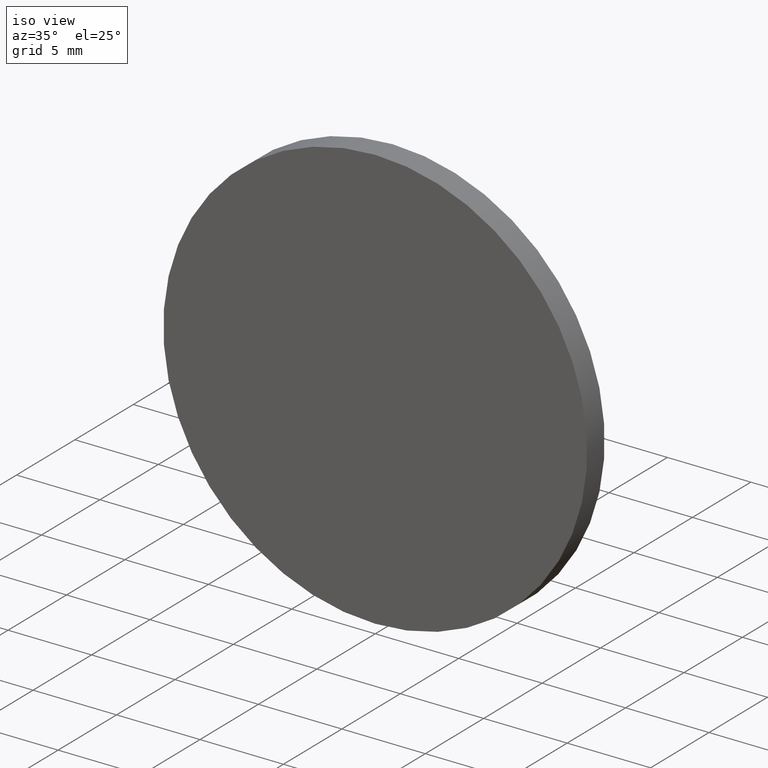
[diagram: clean part render]
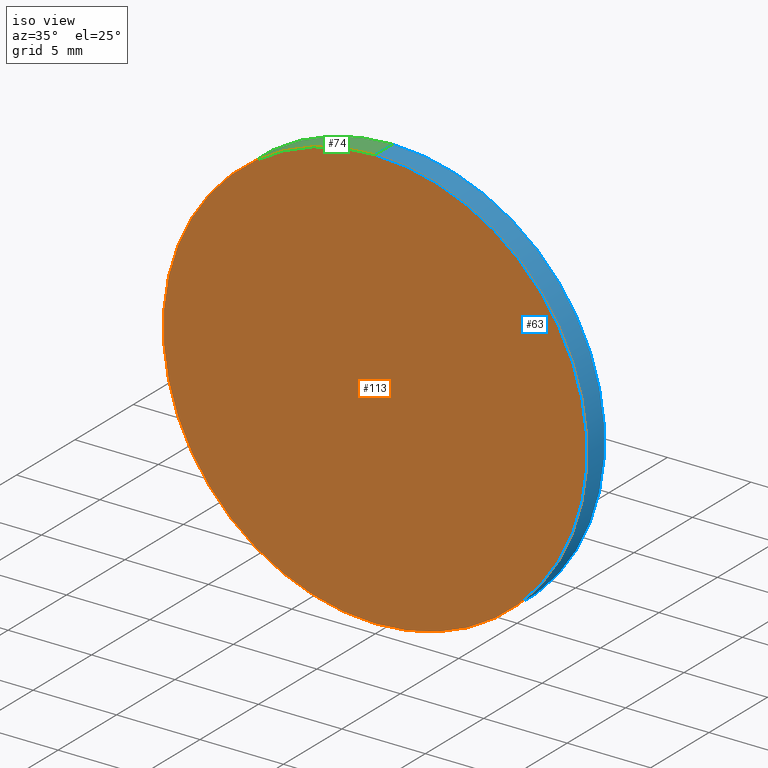
[diagram: same view with three faces highlighted in distinct colors, each labeled with its STEP entity id]
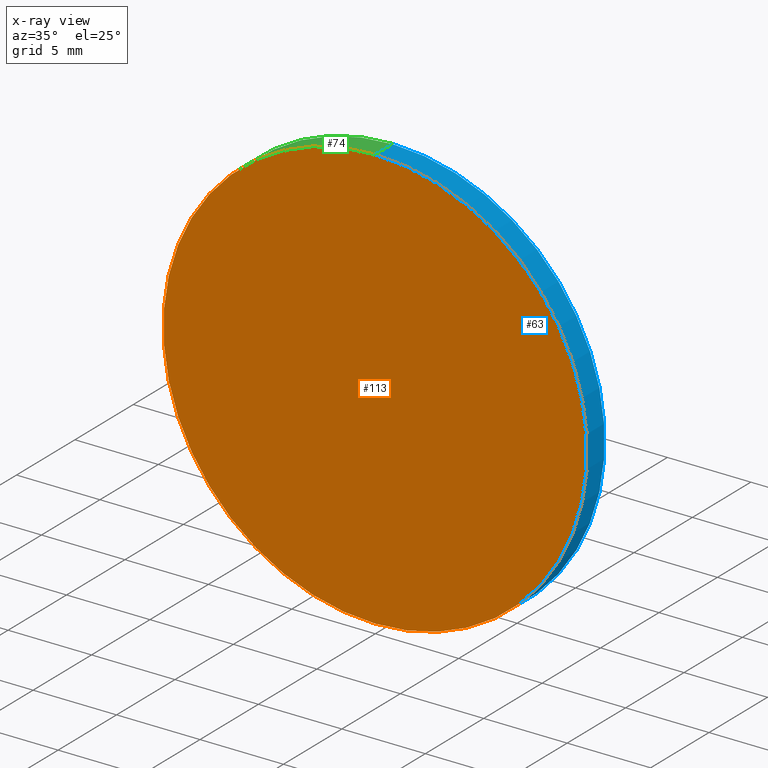
[diagram: x-ray of the same camera — body ghosted, the three highlighted faces saturated]
A machine part, iso view with three faces highlighted in distinct colors.
The next image is the same camera in x-ray (body ghosted, the three faces saturated) — at least one of them is partly hidden behind the body in this view.
Their STEP definitions:

[orange] entity #113 — the highlighted planar face has unit normal (0, 1, 0).
#5 = AXIS2_PLACEMENT_3D ( 'NONE', #87, #127, #116 ) ;
#13 = CARTESIAN_POINT ( 'NONE',  ( 0.0000000000000000000, 0.0000000000000000000, 0.0000000000000000000 ) ) ;
#16 = CIRCLE ( 'NONE', #5, 12.69999999999999900 ) ;
#26 = VERTEX_POINT ( 'NONE', #122 ) ;
#27 = AXIS2_PLACEMENT_3D ( 'NONE', #96, #32, #106 ) ;
#29 = AXIS2_PLACEMENT_3D ( 'NONE', #13, #120, #129 ) ;
#32 = DIRECTION ( 'NONE',  ( 0.0000000000000000000, 1.000000000000000000, 0.0000000000000000000 ) ) ;
#41 = PLANE ( 'NONE',  #29 ) ;
#42 = CIRCLE ( 'NONE', #27, 12.69999999999999900 ) ;
#68 = ORIENTED_EDGE ( 'NONE', *, *, #89, .F. ) ;
#87 = CARTESIAN_POINT ( 'NONE',  ( 0.0000000000000000000, 0.0000000000000000000, 0.0000000000000000000 ) ) ;
#89 = EDGE_CURVE ( 'NONE', #139, #26, #42, .T. ) ;
#95 = EDGE_CURVE ( 'NONE', #26, #139, #16, .T. ) ;
#96 = CARTESIAN_POINT ( 'NONE',  ( 0.0000000000000000000, 0.0000000000000000000, 0.0000000000000000000 ) ) ;
#106 = DIRECTION ( 'NONE',  ( 0.0000000000000000000, 0.0000000000000000000, 1.000000000000000000 ) ) ;
#107 = CARTESIAN_POINT ( 'NONE',  ( 1.555301434917138400E-015, 0.0000000000000000000, 12.69999999999999900 ) ) ;
#113 = ADVANCED_FACE ( 'NONE', ( #126 ), #41, .F. ) ;
#116 = DIRECTION ( 'NONE',  ( 0.0000000000000000000, 0.0000000000000000000, 1.000000000000000000 ) ) ;
#120 = DIRECTION ( 'NONE',  ( 0.0000000000000000000, 1.000000000000000000, 0.0000000000000000000 ) ) ;
#122 = CARTESIAN_POINT ( 'NONE',  ( 0.0000000000000000000, 0.0000000000000000000, -12.69999999999999900 ) ) ;
#124 = EDGE_LOOP ( 'NONE', ( #135, #68 ) ) ;
#126 = FACE_OUTER_BOUND ( 'NONE', #124, .T. ) ;
#127 = DIRECTION ( 'NONE',  ( 0.0000000000000000000, 1.000000000000000000, 0.0000000000000000000 ) ) ;
#129 = DIRECTION ( 'NONE',  ( 0.0000000000000000000, -0.0000000000000000000, 1.000000000000000000 ) ) ;
#135 = ORIENTED_EDGE ( 'NONE', *, *, #95, .F. ) ;
#139 = VERTEX_POINT ( 'NONE', #107 ) ;

[blue] entity #63 — the highlighted cylindrical surface (partial cylindrical patch) has radius 12.7 mm, axis along (-0, -1, -0).
#1 = EDGE_CURVE ( 'NONE', #137, #12, #3, .T. ) ;
#3 = CIRCLE ( 'NONE', #115, 12.69999999999999900 ) ;
#6 = VECTOR ( 'NONE', #43, 1000.000000000000000 ) ;
#9 = ORIENTED_EDGE ( 'NONE', *, *, #89, .T. ) ;
#10 = CARTESIAN_POINT ( 'NONE',  ( 0.0000000000000000000, 1.500000000000000000, -12.69999999999999900 ) ) ;
#11 = DIRECTION ( 'NONE',  ( -0.0000000000000000000, -1.000000000000000000, -0.0000000000000000000 ) ) ;
#12 = VERTEX_POINT ( 'NONE', #34 ) ;
#17 = ORIENTED_EDGE ( 'NONE', *, *, #1, .F. ) ;
#19 = EDGE_LOOP ( 'NONE', ( #17, #85, #9, #99 ) ) ;
#26 = VERTEX_POINT ( 'NONE', #122 ) ;
#27 = AXIS2_PLACEMENT_3D ( 'NONE', #96, #32, #106 ) ;
#32 = DIRECTION ( 'NONE',  ( 0.0000000000000000000, 1.000000000000000000, 0.0000000000000000000 ) ) ;
#34 = CARTESIAN_POINT ( 'NONE',  ( 0.0000000000000000000, 1.500000000000000000, -12.69999999999999900 ) ) ;
#42 = CIRCLE ( 'NONE', #27, 12.69999999999999900 ) ;
#43 = DIRECTION ( 'NONE',  ( -0.0000000000000000000, -1.000000000000000000, -0.0000000000000000000 ) ) ;
#47 = CARTESIAN_POINT ( 'NONE',  ( 0.0000000000000000000, 1.500000000000000000, 0.0000000000000000000 ) ) ;
#58 = FACE_OUTER_BOUND ( 'NONE', #19, .T. ) ;
#60 = DIRECTION ( 'NONE',  ( 0.0000000000000000000, 0.0000000000000000000, 1.000000000000000000 ) ) ;
#62 = EDGE_CURVE ( 'NONE', #12, #26, #82, .T. ) ;
#63 = ADVANCED_FACE ( 'NONE', ( #58 ), #98, .T. ) ;
#67 = DIRECTION ( 'NONE',  ( 0.0000000000000000000, 1.000000000000000000, 0.0000000000000000000 ) ) ;
#70 = EDGE_CURVE ( 'NONE', #137, #139, #108, .T. ) ;
#75 = CARTESIAN_POINT ( 'NONE',  ( 1.555301434917138400E-015, 1.500000000000000000, 12.69999999999999900 ) ) ;
#77 = CARTESIAN_POINT ( 'NONE',  ( 0.0000000000000000000, 1.500000000000000000, 0.0000000000000000000 ) ) ;
#82 = LINE ( 'NONE', #10, #6 ) ;
#85 = ORIENTED_EDGE ( 'NONE', *, *, #70, .T. ) ;
#86 = DIRECTION ( 'NONE',  ( -0.0000000000000000000, -1.000000000000000000, -0.0000000000000000000 ) ) ;
#89 = EDGE_CURVE ( 'NONE', #139, #26, #42, .T. ) ;
#96 = CARTESIAN_POINT ( 'NONE',  ( 0.0000000000000000000, 0.0000000000000000000, 0.0000000000000000000 ) ) ;
#98 = CYLINDRICAL_SURFACE ( 'NONE', #128, 12.69999999999999900 ) ;
#99 = ORIENTED_EDGE ( 'NONE', *, *, #62, .F. ) ;
#102 = CARTESIAN_POINT ( 'NONE',  ( 1.555301434917138400E-015, 1.500000000000000000, 12.69999999999999900 ) ) ;
#106 = DIRECTION ( 'NONE',  ( 0.0000000000000000000, 0.0000000000000000000, 1.000000000000000000 ) ) ;
#107 = CARTESIAN_POINT ( 'NONE',  ( 1.555301434917138400E-015, 0.0000000000000000000, 12.69999999999999900 ) ) ;
#108 = LINE ( 'NONE', #75, #119 ) ;
#115 = AXIS2_PLACEMENT_3D ( 'NONE', #77, #67, #60 ) ;
#119 = VECTOR ( 'NONE', #86, 1000.000000000000000 ) ;
#122 = CARTESIAN_POINT ( 'NONE',  ( 0.0000000000000000000, 0.0000000000000000000, -12.69999999999999900 ) ) ;
#128 = AXIS2_PLACEMENT_3D ( 'NONE', #47, #11, #134 ) ;
#134 = DIRECTION ( 'NONE',  ( 0.0000000000000000000, 0.0000000000000000000, -1.000000000000000000 ) ) ;
#137 = VERTEX_POINT ( 'NONE', #102 ) ;
#139 = VERTEX_POINT ( 'NONE', #107 ) ;

[green] entity #74 — the highlighted cylindrical surface (partial cylindrical patch) has radius 12.7 mm, axis along (-0, -1, -0).
#5 = AXIS2_PLACEMENT_3D ( 'NONE', #87, #127, #116 ) ;
#6 = VECTOR ( 'NONE', #43, 1000.000000000000000 ) ;
#10 = CARTESIAN_POINT ( 'NONE',  ( 0.0000000000000000000, 1.500000000000000000, -12.69999999999999900 ) ) ;
#12 = VERTEX_POINT ( 'NONE', #34 ) ;
#16 = CIRCLE ( 'NONE', #5, 12.69999999999999900 ) ;
#25 = CIRCLE ( 'NONE', #104, 12.69999999999999900 ) ;
#26 = VERTEX_POINT ( 'NONE', #122 ) ;
#34 = CARTESIAN_POINT ( 'NONE',  ( 0.0000000000000000000, 1.500000000000000000, -12.69999999999999900 ) ) ;
#37 = ORIENTED_EDGE ( 'NONE', *, *, #70, .F. ) ;
#40 = DIRECTION ( 'NONE',  ( -0.0000000000000000000, -1.000000000000000000, -0.0000000000000000000 ) ) ;
#43 = DIRECTION ( 'NONE',  ( -0.0000000000000000000, -1.000000000000000000, -0.0000000000000000000 ) ) ;
#52 = ORIENTED_EDGE ( 'NONE', *, *, #81, .F. ) ;
#57 = ORIENTED_EDGE ( 'NONE', *, *, #95, .T. ) ;
#62 = EDGE_CURVE ( 'NONE', #12, #26, #82, .T. ) ;
#65 = DIRECTION ( 'NONE',  ( 0.0000000000000000000, 1.000000000000000000, 0.0000000000000000000 ) ) ;
#66 = CARTESIAN_POINT ( 'NONE',  ( 0.0000000000000000000, 1.500000000000000000, 0.0000000000000000000 ) ) ;
#70 = EDGE_CURVE ( 'NONE', #137, #139, #108, .T. ) ;
#74 = ADVANCED_FACE ( 'NONE', ( #112 ), #131, .T. ) ;
#75 = CARTESIAN_POINT ( 'NONE',  ( 1.555301434917138400E-015, 1.500000000000000000, 12.69999999999999900 ) ) ;
#80 = EDGE_LOOP ( 'NONE', ( #37, #52, #110, #57 ) ) ;
#81 = EDGE_CURVE ( 'NONE', #12, #137, #25, .T. ) ;
#82 = LINE ( 'NONE', #10, #6 ) ;
#86 = DIRECTION ( 'NONE',  ( -0.0000000000000000000, -1.000000000000000000, -0.0000000000000000000 ) ) ;
#87 = CARTESIAN_POINT ( 'NONE',  ( 0.0000000000000000000, 0.0000000000000000000, 0.0000000000000000000 ) ) ;
#95 = EDGE_CURVE ( 'NONE', #26, #139, #16, .T. ) ;
#102 = CARTESIAN_POINT ( 'NONE',  ( 1.555301434917138400E-015, 1.500000000000000000, 12.69999999999999900 ) ) ;
#104 = AXIS2_PLACEMENT_3D ( 'NONE', #138, #65, #125 ) ;
#107 = CARTESIAN_POINT ( 'NONE',  ( 1.555301434917138400E-015, 0.0000000000000000000, 12.69999999999999900 ) ) ;
#108 = LINE ( 'NONE', #75, #119 ) ;
#110 = ORIENTED_EDGE ( 'NONE', *, *, #62, .T. ) ;
#112 = FACE_OUTER_BOUND ( 'NONE', #80, .T. ) ;
#116 = DIRECTION ( 'NONE',  ( 0.0000000000000000000, 0.0000000000000000000, 1.000000000000000000 ) ) ;
#119 = VECTOR ( 'NONE', #86, 1000.000000000000000 ) ;
#122 = CARTESIAN_POINT ( 'NONE',  ( 0.0000000000000000000, 0.0000000000000000000, -12.69999999999999900 ) ) ;
#125 = DIRECTION ( 'NONE',  ( 0.0000000000000000000, 0.0000000000000000000, 1.000000000000000000 ) ) ;
#127 = DIRECTION ( 'NONE',  ( 0.0000000000000000000, 1.000000000000000000, 0.0000000000000000000 ) ) ;
#131 = CYLINDRICAL_SURFACE ( 'NONE', #136, 12.69999999999999900 ) ;
#136 = AXIS2_PLACEMENT_3D ( 'NONE', #66, #40, #140 ) ;
#137 = VERTEX_POINT ( 'NONE', #102 ) ;
#138 = CARTESIAN_POINT ( 'NONE',  ( 0.0000000000000000000, 1.500000000000000000, 0.0000000000000000000 ) ) ;
#139 = VERTEX_POINT ( 'NONE', #107 ) ;
#140 = DIRECTION ( 'NONE',  ( 0.0000000000000000000, 0.0000000000000000000, -1.000000000000000000 ) ) ;